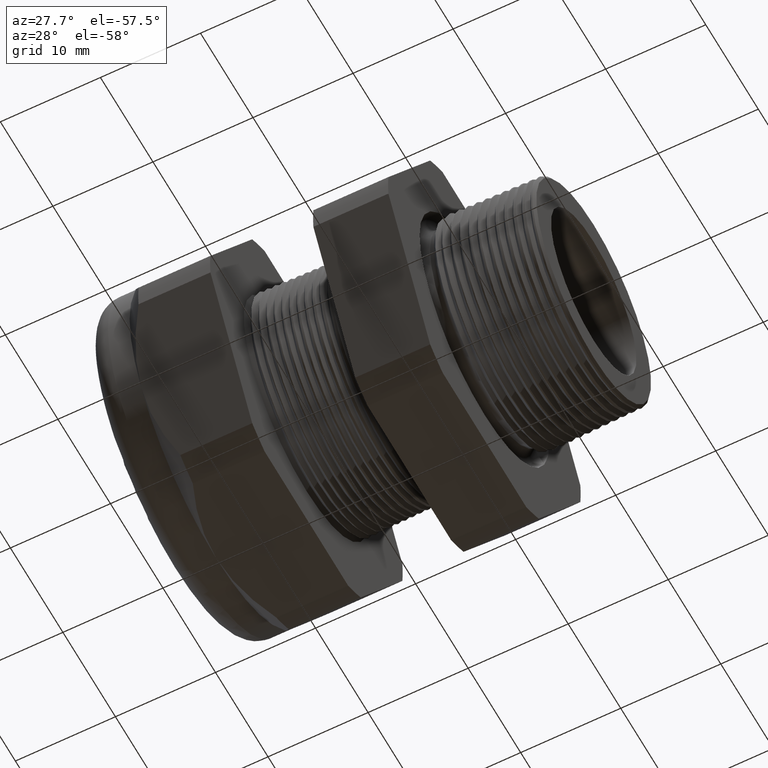
[diagram: clean part render]
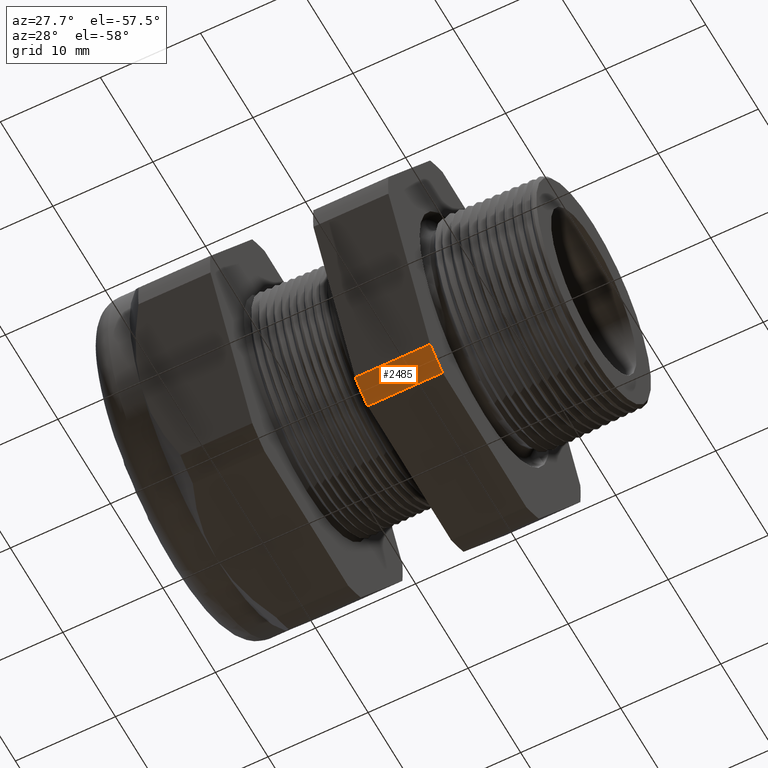
[diagram: same view with one face highlighted and labeled with its STEP entity id]
A machine part, auxiliary view. The second image highlights one B-rep face of the part: STEP entity #2485.
In plain terms, the highlighted cylindrical surface (partial cylindrical patch) has radius 18.3261 mm, axis along (-1, 0, 0).
Its self-contained STEP definition (entity closure, byte-faithful):
#240 = VERTEX_POINT ( 'NONE', #3016 ) ;
#242 = EDGE_CURVE ( 'NONE', #240, #243, #3077, .T. ) ;
#243 = VERTEX_POINT ( 'NONE', #3072 ) ;
#323 = VERTEX_POINT ( 'NONE', #3241 ) ;
#325 = EDGE_CURVE ( 'NONE', #323, #326, #3240, .T. ) ;
#326 = VERTEX_POINT ( 'NONE', #3235 ) ;
#1085 = DIRECTION ( 'NONE',  ( -1.000000000000000000, 0.0000000000000000000, 0.0000000000000000000 ) ) ;
#1086 = VECTOR ( 'NONE', #1085, 39.37007874015748100 ) ;
#1087 = CARTESIAN_POINT ( 'NONE',  ( 0.1200000000000000900, -0.3131489262315934100, -0.6500000000000001300 ) ) ;
#1088 = LINE ( 'NONE', #1087, #1086 ) ;
#2480 = ORIENTED_EDGE ( 'NONE', *, *, #325, .F. ) ;
#2481 = EDGE_LOOP ( 'NONE', ( #2483, #2480, #2584, #2574 ) ) ;
#2483 = ORIENTED_EDGE ( 'NONE', *, *, #2500, .T. ) ;
#2485 = ADVANCED_FACE ( 'NONE', ( #4899 ), #4898, .T. ) ;
#2500 = EDGE_CURVE ( 'NONE', #240, #326, #4939, .T. ) ;
#2574 = ORIENTED_EDGE ( 'NONE', *, *, #242, .F. ) ;
#2582 = EDGE_CURVE ( 'NONE', #243, #323, #1088, .T. ) ;
#2584 = ORIENTED_EDGE ( 'NONE', *, *, #2582, .F. ) ;
#3016 = CARTESIAN_POINT ( 'NONE',  ( -0.3100000000000000000, -0.4063420493440881300, -0.5961949252843793400 ) ) ;
#3072 = CARTESIAN_POINT ( 'NONE',  ( -0.3100000000000000000, -0.3131489262315934100, -0.6500000000000001300 ) ) ;
#3073 = DIRECTION ( 'NONE',  ( 0.0000000000000000000, 0.0000000000000000000, -1.000000000000000000 ) ) ;
#3074 = DIRECTION ( 'NONE',  ( 1.000000000000000000, 0.0000000000000000000, 0.0000000000000000000 ) ) ;
#3075 = CARTESIAN_POINT ( 'NONE',  ( -0.3100000000000000000, 0.0000000000000000000, 0.0000000000000000000 ) ) ;
#3076 = AXIS2_PLACEMENT_3D ( 'NONE', #3075, #3074, #3073 ) ;
#3077 = CIRCLE ( 'NONE', #3076, 0.7215000000000000300 ) ;
#3235 = CARTESIAN_POINT ( 'NONE',  ( -0.6052755905511810800, -0.4063420493440881300, -0.5961949252843793400 ) ) ;
#3236 = DIRECTION ( 'NONE',  ( 0.0000000000000000000, 0.0000000000000000000, 1.000000000000000000 ) ) ;
#3237 = DIRECTION ( 'NONE',  ( -1.000000000000000000, 0.0000000000000000000, 0.0000000000000000000 ) ) ;
#3238 = CARTESIAN_POINT ( 'NONE',  ( -0.6052755905511810800, 0.0000000000000000000, 0.0000000000000000000 ) ) ;
#3239 = AXIS2_PLACEMENT_3D ( 'NONE', #3238, #3237, #3236 ) ;
#3240 = CIRCLE ( 'NONE', #3239, 0.7215000000000000300 ) ;
#3241 = CARTESIAN_POINT ( 'NONE',  ( -0.6052755905511810800, -0.3131489262315934100, -0.6500000000000001300 ) ) ;
#4893 = DIRECTION ( 'NONE',  ( 0.0000000000000000000, 0.0000000000000000000, 1.000000000000000000 ) ) ;
#4894 = DIRECTION ( 'NONE',  ( -1.000000000000000000, 0.0000000000000000000, 0.0000000000000000000 ) ) ;
#4895 = CARTESIAN_POINT ( 'NONE',  ( 0.1200000000000000900, 0.0000000000000000000, 0.0000000000000000000 ) ) ;
#4896 = AXIS2_PLACEMENT_3D ( 'NONE', #4895, #4894, #4893 ) ;
#4898 = CYLINDRICAL_SURFACE ( 'NONE', #4896, 0.7215000000000000300 ) ;
#4899 = FACE_OUTER_BOUND ( 'NONE', #2481, .T. ) ;
#4936 = DIRECTION ( 'NONE',  ( -1.000000000000000000, 0.0000000000000000000, 0.0000000000000000000 ) ) ;
#4937 = VECTOR ( 'NONE', #4936, 39.37007874015748100 ) ;
#4938 = CARTESIAN_POINT ( 'NONE',  ( 0.1200000000000000900, -0.4063420493440881300, -0.5961949252843793400 ) ) ;
#4939 = LINE ( 'NONE', #4938, #4937 ) ;